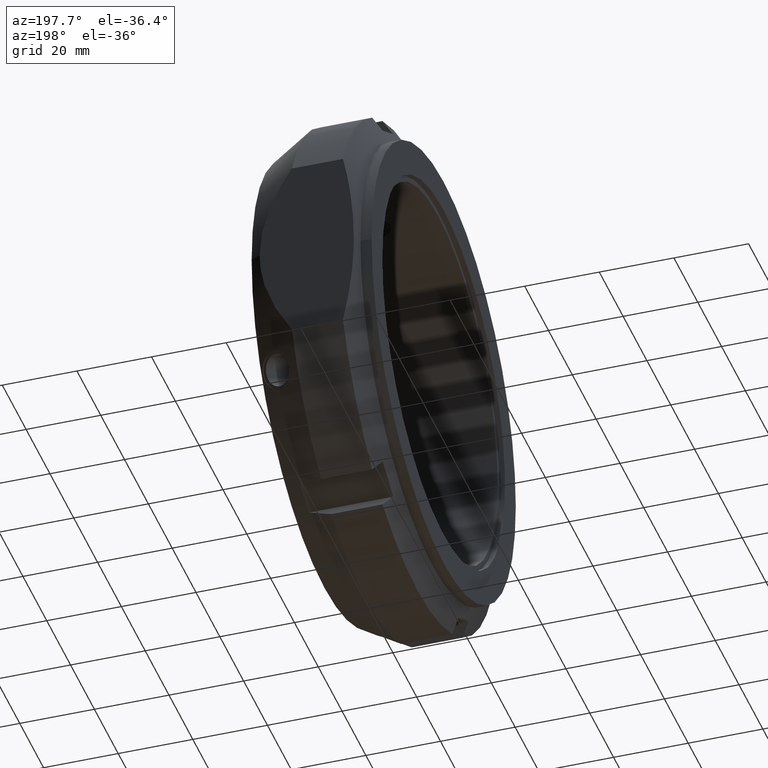
[diagram: clean part render]
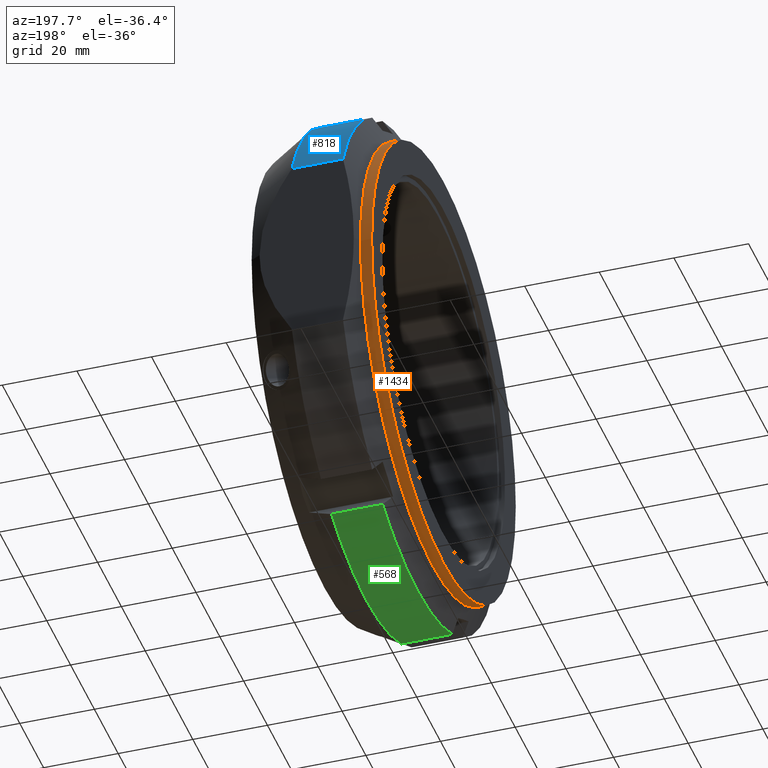
[diagram: same view with three faces highlighted in distinct colors, each labeled with its STEP entity id]
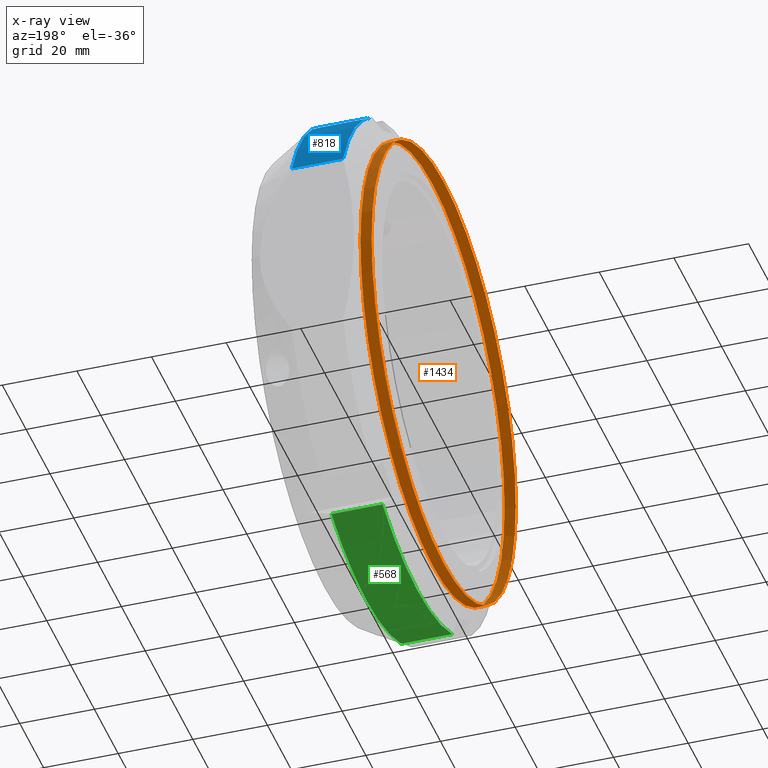
[diagram: x-ray of the same camera — body ghosted, the three highlighted faces saturated]
A machine part, auxiliary view with three faces highlighted in distinct colors.
The next image is the same camera in x-ray (body ghosted, the three faces saturated) — at least one of them is partly hidden behind the body in this view.
Their STEP definitions:

[orange] entity #1434 — the highlighted cylindrical surface (bore or boss wall) has radius 60.5 mm, axis along (1, 0, 0).
#361=CARTESIAN_POINT('',(2.999999999999983,60.500000000000007,0.0));
#362=VERTEX_POINT('',#361);
#363=CARTESIAN_POINT('',(2.999999999999983,0.0,0.0));
#364=DIRECTION('',(1.0,0.0,0.0));
#365=DIRECTION('',(0.0,1.0,0.0));
#366=AXIS2_PLACEMENT_3D('',#363,#364,#365);
#367=CIRCLE('',#366,60.500000000000007);
#368=EDGE_CURVE('',#362,#362,#367,.T.);
#1408=CARTESIAN_POINT('',(-1.776357E-014,60.500000000000007,0.0));
#1409=VERTEX_POINT('',#1408);
#1410=CARTESIAN_POINT('',(-1.776357E-014,0.0,0.0));
#1411=DIRECTION('',(1.0,0.0,0.0));
#1412=DIRECTION('',(0.0,1.0,0.0));
#1413=AXIS2_PLACEMENT_3D('',#1410,#1411,#1412);
#1414=CIRCLE('',#1413,60.500000000000007);
#1415=EDGE_CURVE('',#1409,#1409,#1414,.T.);
#1423=CARTESIAN_POINT('',(1.499999999999983,0.0,0.0));
#1424=DIRECTION('',(1.0,0.0,0.0));
#1425=DIRECTION('',(0.0,1.0,0.0));
#1426=AXIS2_PLACEMENT_3D('',#1423,#1424,#1425);
#1427=CYLINDRICAL_SURFACE('',#1426,60.500000000000007);
#1428=ORIENTED_EDGE('',*,*,#368,.F.);
#1429=EDGE_LOOP('',(#1428));
#1430=FACE_OUTER_BOUND('',#1429,.T.);
#1431=ORIENTED_EDGE('',*,*,#1415,.T.);
#1432=EDGE_LOOP('',(#1431));
#1433=FACE_BOUND('',#1432,.T.);
#1434=ADVANCED_FACE('',(#1430,#1433),#1427,.T.);

[blue] entity #818 — the highlighted cylindrical surface (partial cylindrical patch) has radius 67.5 mm, axis along (1, 0, 0).
#502=CARTESIAN_POINT('',(7.041451884327348,37.987407063512784,55.796119081805131));
#503=VERTEX_POINT('',#502);
#517=CARTESIAN_POINT('',(7.041451884327348,62.500000000000043,25.495097567963818));
#518=VERTEX_POINT('',#517);
#519=CARTESIAN_POINT('',(7.041451884327348,0.0,0.0));
#520=DIRECTION('',(1.0,0.0,0.0));
#521=DIRECTION('',(0.0,1.0,0.0));
#522=AXIS2_PLACEMENT_3D('',#519,#520,#521);
#523=CIRCLE('',#522,67.5);
#524=EDGE_CURVE('',#518,#503,#523,.T.);
#639=CARTESIAN_POINT('',(20.741669750802309,37.987407063512777,55.796119081805131));
#640=VERTEX_POINT('',#639);
#654=CARTESIAN_POINT('',(7.041451884327348,37.987407063512784,55.796119081805131));
#655=DIRECTION('',(1.0,0.0,0.0));
#656=VECTOR('',#655,13.700217866474961);
#657=LINE('',#654,#656);
#658=EDGE_CURVE('',#503,#640,#657,.T.);
#794=CARTESIAN_POINT('',(13.891560817564814,0.0,0.0));
#795=DIRECTION('',(1.0,0.0,0.0));
#796=DIRECTION('',(0.0,1.0,0.0));
#797=AXIS2_PLACEMENT_3D('',#794,#795,#796);
#798=CYLINDRICAL_SURFACE('',#797,67.5);
#799=ORIENTED_EDGE('',*,*,#658,.T.);
#800=CARTESIAN_POINT('',(20.741669750802281,62.500000000000043,25.495097567963818));
#801=VERTEX_POINT('',#800);
#802=CARTESIAN_POINT('',(20.741669750802281,0.0,0.0));
#803=DIRECTION('',(1.0,0.0,0.0));
#804=DIRECTION('',(0.0,1.0,0.0));
#805=AXIS2_PLACEMENT_3D('',#802,#803,#804);
#806=CIRCLE('',#805,67.5);
#807=EDGE_CURVE('',#801,#640,#806,.T.);
#808=ORIENTED_EDGE('',*,*,#807,.F.);
#809=CARTESIAN_POINT('',(20.741669750802281,62.500000000000043,25.495097567963818));
#810=DIRECTION('',(-1.0,0.0,0.0));
#811=VECTOR('',#810,13.700217866474933);
#812=LINE('',#809,#811);
#813=EDGE_CURVE('',#801,#518,#812,.T.);
#814=ORIENTED_EDGE('',*,*,#813,.T.);
#815=ORIENTED_EDGE('',*,*,#524,.T.);
#816=EDGE_LOOP('',(#799,#808,#814,#815));
#817=FACE_OUTER_BOUND('',#816,.T.);
#818=ADVANCED_FACE('',(#817),#798,.T.);

[green] entity #568 — the highlighted cylindrical surface (partial cylindrical patch) has radius 67.5 mm, axis along (1, 0, 0).
#127=CARTESIAN_POINT('',(7.041451884327344,29.327153025668402,-60.796119081805116));
#128=VERTEX_POINT('',#127);
#143=CARTESIAN_POINT('',(20.741669750802295,29.327153025668395,-60.796119081805116));
#144=VERTEX_POINT('',#143);
#158=CARTESIAN_POINT('',(7.041451884327344,29.327153025668402,-60.796119081805116));
#159=DIRECTION('',(1.0,0.0,0.0));
#160=VECTOR('',#159,13.700217866474951);
#161=LINE('',#158,#160);
#162=EDGE_CURVE('',#128,#144,#161,.T.);
#271=CARTESIAN_POINT('',(7.041451884327341,-29.32715302566843,-60.796119081805095));
#272=VERTEX_POINT('',#271);
#288=CARTESIAN_POINT('',(20.741669750802313,-29.32715302566843,-60.796119081805095));
#289=VERTEX_POINT('',#288);
#290=CARTESIAN_POINT('',(20.741669750802313,-29.327153025668437,-60.796119081805102));
#291=DIRECTION('',(-1.0,0.0,0.0));
#292=VECTOR('',#291,13.700217866474972);
#293=LINE('',#290,#292);
#294=EDGE_CURVE('',#289,#272,#293,.T.);
#375=CARTESIAN_POINT('',(7.041451884327348,0.0,0.0));
#376=DIRECTION('',(1.0,0.0,0.0));
#377=DIRECTION('',(0.0,1.0,0.0));
#378=AXIS2_PLACEMENT_3D('',#375,#376,#377);
#379=CIRCLE('',#378,67.5);
#380=EDGE_CURVE('',#272,#128,#379,.T.);
#551=CARTESIAN_POINT('',(13.891560817564814,0.0,0.0));
#552=DIRECTION('',(1.0,0.0,0.0));
#553=DIRECTION('',(0.0,1.0,0.0));
#554=AXIS2_PLACEMENT_3D('',#551,#552,#553);
#555=CYLINDRICAL_SURFACE('',#554,67.5);
#556=ORIENTED_EDGE('',*,*,#162,.T.);
#557=CARTESIAN_POINT('',(20.741669750802281,0.0,0.0));
#558=DIRECTION('',(1.0,0.0,0.0));
#559=DIRECTION('',(0.0,1.0,0.0));
#560=AXIS2_PLACEMENT_3D('',#557,#558,#559);
#561=CIRCLE('',#560,67.5);
#562=EDGE_CURVE('',#289,#144,#561,.T.);
#563=ORIENTED_EDGE('',*,*,#562,.F.);
#564=ORIENTED_EDGE('',*,*,#294,.T.);
#565=ORIENTED_EDGE('',*,*,#380,.T.);
#566=EDGE_LOOP('',(#556,#563,#564,#565));
#567=FACE_OUTER_BOUND('',#566,.T.);
#568=ADVANCED_FACE('',(#567),#555,.T.);